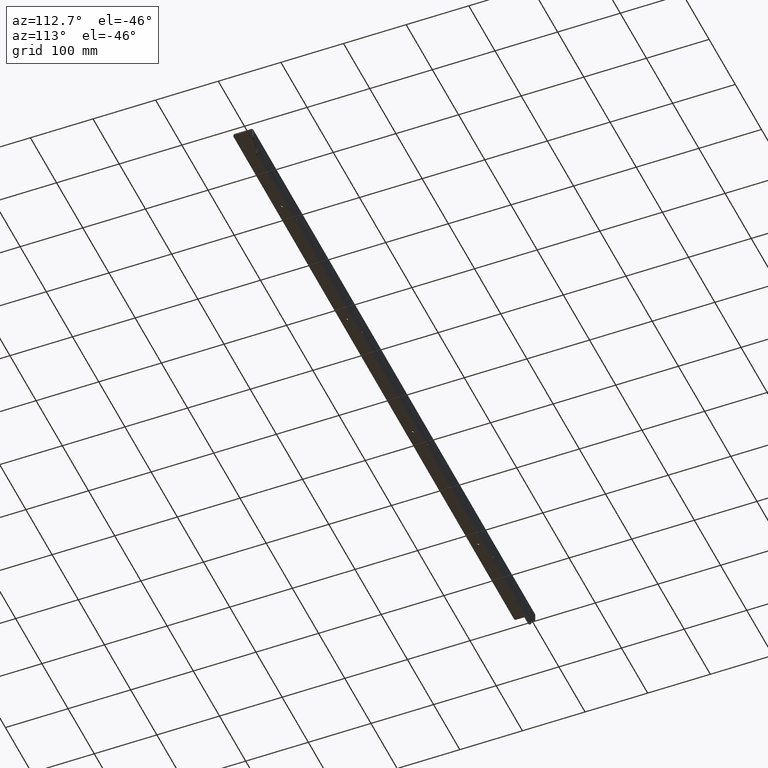
[diagram: clean part render]
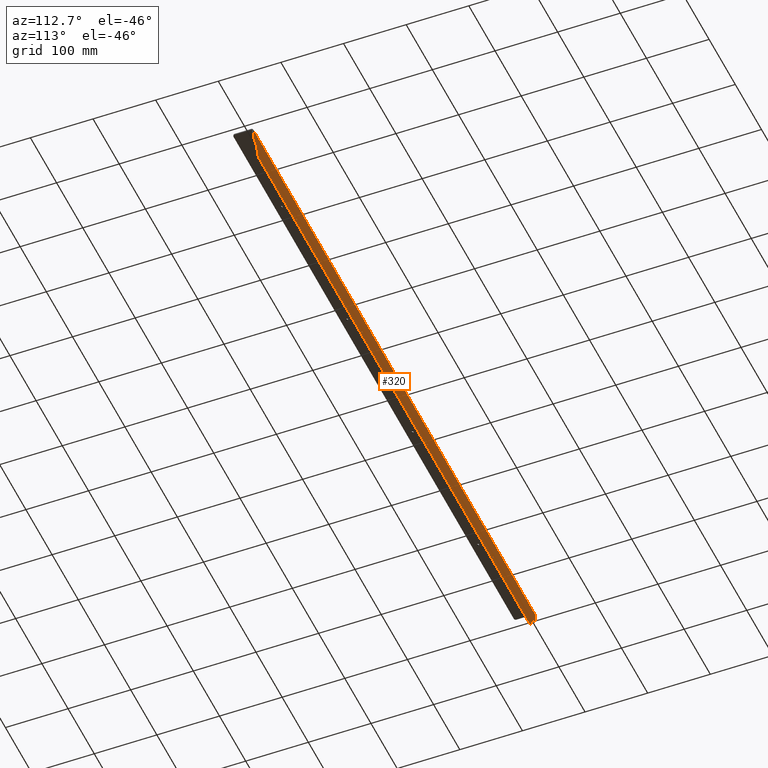
[diagram: same view with one face highlighted and labeled with its STEP entity id]
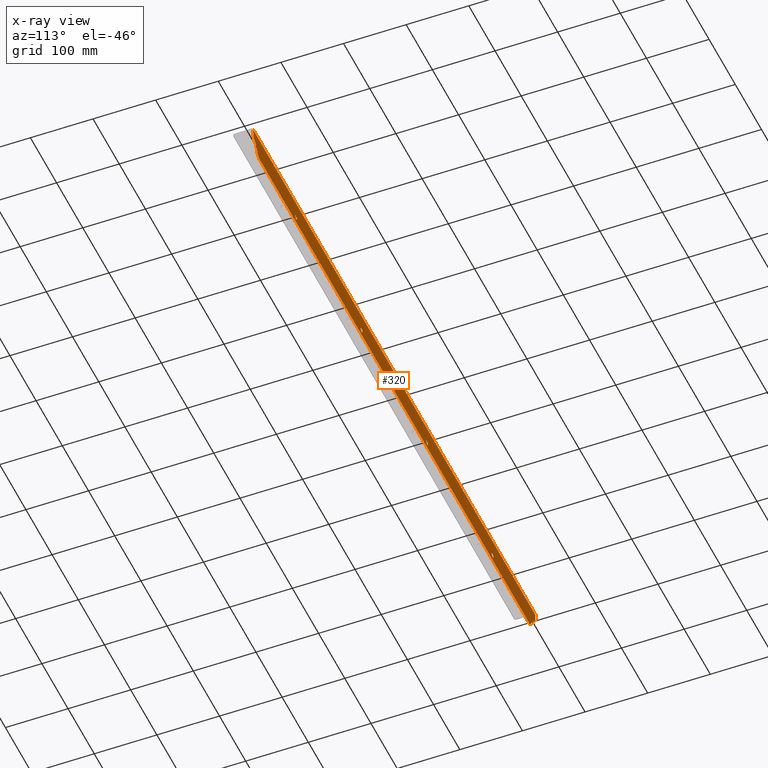
[diagram: x-ray of the same camera — body ghosted, the highlighted face saturated]
A machine part, auxiliary view. The second image highlights one B-rep face of the part: STEP entity #320.
The next image is the same camera in x-ray: the body ghosted, the highlighted face saturated — about 0% of this face is hidden behind the body in this view.
In plain terms, the highlighted planar face has unit normal (-0, 1, 0).
Its self-contained STEP definition (entity closure, byte-faithful):
#3 = DIRECTION ( 'NONE',  ( 0.000000000000000000, 0.000000000000000000, 1.000000000000000000 ) ) ;
#11 = DIRECTION ( 'NONE',  ( 0.000000000000000000, 0.000000000000000000, 1.000000000000000000 ) ) ;
#30 = DIRECTION ( 'NONE',  ( 0.000000000000000000, 0.000000000000000000, 1.000000000000000000 ) ) ;
#45 = VECTOR ( 'NONE', #541, 1000.000000000000000 ) ;
#50 = CARTESIAN_POINT ( 'NONE',  ( 375.0000000000000000, 1088.305264068990027, 1220.500000000009550 ) ) ;
#58 = EDGE_CURVE ( 'NONE', #1270, #761, #1031, .T. ) ;
#60 = FACE_OUTER_BOUND ( 'NONE', #754, .T. ) ;
#61 = ORIENTED_EDGE ( 'NONE', *, *, #204, .F. ) ;
#67 = VECTOR ( 'NONE', #790, 1000.000000000000000 ) ;
#76 = AXIS2_PLACEMENT_3D ( 'NONE', #453, #1180, #389 ) ;
#79 = DIRECTION ( 'NONE',  ( 0.000000000000000000, 1.000000000000000000, -3.172065784643252111E-14 ) ) ;
#85 = DIRECTION ( 'NONE',  ( -0.000000000000000000, 1.000000000000000000, 0.000000000000000000 ) ) ;
#87 = CARTESIAN_POINT ( 'NONE',  ( -532.4444444444444571, 1088.305264068951146, 1235.228709080119643 ) ) ;
#90 = VERTEX_POINT ( 'NONE', #87 ) ;
#109 = CARTESIAN_POINT ( 'NONE',  ( -538.0000000000001137, 1088.305264068951146, 1257.499999999999545 ) ) ;
#114 = VERTEX_POINT ( 'NONE', #827 ) ;
#116 = AXIS2_PLACEMENT_3D ( 'NONE', #510, #308, #689 ) ;
#117 = DIRECTION ( 'NONE',  ( 0.000000000000000000, 1.000000000000000000, -3.172065784643252111E-14 ) ) ;
#120 = LINE ( 'NONE', #600, #194 ) ;
#132 = EDGE_CURVE ( 'NONE', #234, #1087, #630, .T. ) ;
#144 = CIRCLE ( 'NONE', #655, 3.499999999989844568 ) ;
#156 = ORIENTED_EDGE ( 'NONE', *, *, #1073, .F. ) ;
#170 = AXIS2_PLACEMENT_3D ( 'NONE', #299, #773, #348 ) ;
#171 = CARTESIAN_POINT ( 'NONE',  ( 375.0000000000000000, 1088.305264068990027, 1227.499999999989086 ) ) ;
#173 = ORIENTED_EDGE ( 'NONE', *, *, #132, .T. ) ;
#176 = ORIENTED_EDGE ( 'NONE', *, *, #1152, .T. ) ;
#180 = CARTESIAN_POINT ( 'NONE',  ( 538.0000000000000000, 1088.305264068951146, 1244.186773244895676 ) ) ;
#186 = DIRECTION ( 'NONE',  ( -0.000000000000000000, 1.000000000000000000, 0.000000000000000000 ) ) ;
#194 = VECTOR ( 'NONE', #519, 1000.000000000000000 ) ;
#195 = CARTESIAN_POINT ( 'NONE',  ( -375.0000000000000000, 1088.305264068990027, 1223.999999999999318 ) ) ;
#200 = EDGE_CURVE ( 'NONE', #234, #1235, #535, .T. ) ;
#203 = CARTESIAN_POINT ( 'NONE',  ( -538.0000000000001137, 1088.305264068951146, 1244.186773244895903 ) ) ;
#204 = EDGE_CURVE ( 'NONE', #1235, #722, #443, .T. ) ;
#208 = AXIS2_PLACEMENT_3D ( 'NONE', #1302, #805, #1207 ) ;
#233 = CIRCLE ( 'NONE', #395, 10.00000000000000888 ) ;
#234 = VERTEX_POINT ( 'NONE', #180 ) ;
#242 = VERTEX_POINT ( 'NONE', #171 ) ;
#272 = FACE_BOUND ( 'NONE', #1000, .T. ) ;
#278 = CARTESIAN_POINT ( 'NONE',  ( -375.0000000000000000, 1088.305264068990027, 1227.499999999989086 ) ) ;
#280 = DIRECTION ( 'NONE',  ( -0.000000000000000000, 1.000000000000000000, 0.000000000000000000 ) ) ;
#299 = CARTESIAN_POINT ( 'NONE',  ( -513.2979401543624363, 1088.305264068951146, 1223.999999999999318 ) ) ;
#308 = DIRECTION ( 'NONE',  ( 0.000000000000000000, 1.000000000000000000, -3.172065784643252111E-14 ) ) ;
#311 = VERTEX_POINT ( 'NONE', #1154 ) ;
#313 = AXIS2_PLACEMENT_3D ( 'NONE', #608, #117, #323 ) ;
#315 = CIRCLE ( 'NONE', #1200, 10.00000000000000888 ) ;
#320 = ADVANCED_FACE ( 'NONE', ( #272, #1058, #961, #858, #60 ), #1258, .T. ) ;
#323 = DIRECTION ( 'NONE',  ( 0.000000000000000000, 0.000000000000000000, 1.000000000000000000 ) ) ;
#340 = CARTESIAN_POINT ( 'NONE',  ( 528.0000000000000000, 1088.305264068951146, 1244.186773244895676 ) ) ;
#346 = ORIENTED_EDGE ( 'NONE', *, *, #464, .F. ) ;
#348 = DIRECTION ( 'NONE',  ( 0.000000000000000000, 0.000000000000000000, 1.000000000000000000 ) ) ;
#357 = DIRECTION ( 'NONE',  ( 0.000000000000000000, 0.000000000000000000, 1.000000000000000000 ) ) ;
#371 = CARTESIAN_POINT ( 'NONE',  ( 605.0096185640381918, 1088.305264068951146, 1257.499999999999545 ) ) ;
#389 = DIRECTION ( 'NONE',  ( 0.000000000000000000, 0.000000000000000000, 1.000000000000000000 ) ) ;
#392 = DIRECTION ( 'NONE',  ( 0.000000000000000000, 0.000000000000000000, 1.000000000000000000 ) ) ;
#395 = AXIS2_PLACEMENT_3D ( 'NONE', #705, #431, #11 ) ;
#400 = ORIENTED_EDGE ( 'NONE', *, *, #1043, .T. ) ;
#402 = LINE ( 'NONE', #109, #67 ) ;
#407 = CARTESIAN_POINT ( 'NONE',  ( -375.0000000000000000, 1088.305264068990027, 1220.500000000009550 ) ) ;
#408 = VECTOR ( 'NONE', #30, 1000.000000000000000 ) ;
#429 = ORIENTED_EDGE ( 'NONE', *, *, #1220, .T. ) ;
#431 = DIRECTION ( 'NONE',  ( -0.000000000000000000, 1.000000000000000000, 0.000000000000000000 ) ) ;
#439 = EDGE_LOOP ( 'NONE', ( #1212, #735 ) ) ;
#443 = LINE ( 'NONE', #1134, #45 ) ;
#452 = EDGE_CURVE ( 'NONE', #722, #1238, #402, .T. ) ;
#453 = CARTESIAN_POINT ( 'NONE',  ( 125.0000000000000000, 1088.305264068990027, 1223.999999999999318 ) ) ;
#461 = CARTESIAN_POINT ( 'NONE',  ( -125.0000000000000000, 1088.305264068990027, 1227.499999999989086 ) ) ;
#464 = EDGE_CURVE ( 'NONE', #1219, #114, #799, .T. ) ;
#468 = EDGE_CURVE ( 'NONE', #1060, #242, #552, .T. ) ;
#470 = ORIENTED_EDGE ( 'NONE', *, *, #452, .F. ) ;
#473 = AXIS2_PLACEMENT_3D ( 'NONE', #882, #605, #392 ) ;
#479 = AXIS2_PLACEMENT_3D ( 'NONE', #774, #79, #880 ) ;
#486 = EDGE_CURVE ( 'NONE', #90, #1125, #1198, .T. ) ;
#499 = CARTESIAN_POINT ( 'NONE',  ( -513.2979401543623226, 1088.305264068951146, 1213.999999999999318 ) ) ;
#502 = CARTESIAN_POINT ( 'NONE',  ( 538.0000000000000000, 1088.305264068951146, 1253.499999999999545 ) ) ;
#505 = DIRECTION ( 'NONE',  ( 0.000000000000000000, 1.000000000000000000, -3.172065784643252111E-14 ) ) ;
#510 = CARTESIAN_POINT ( 'NONE',  ( 125.0000000000000000, 1088.305264068990027, 1223.999999999999318 ) ) ;
#519 = DIRECTION ( 'NONE',  ( -1.000000000000000000, -0.000000000000000000, -0.000000000000000000 ) ) ;
#521 = CIRCLE ( 'NONE', #1272, 3.499999999989844568 ) ;
#535 = LINE ( 'NONE', #739, #408 ) ;
#541 = DIRECTION ( 'NONE',  ( -1.000000000000000000, -0.000000000000000000, -0.000000000000000000 ) ) ;
#552 = CIRCLE ( 'NONE', #758, 3.499999999989844568 ) ;
#567 = VERTEX_POINT ( 'NONE', #708 ) ;
#569 = AXIS2_PLACEMENT_3D ( 'NONE', #340, #1037, #714 ) ;
#583 = DIRECTION ( 'NONE',  ( 0.000000000000000000, 1.000000000000000000, -3.172065784643252111E-14 ) ) ;
#593 = EDGE_LOOP ( 'NONE', ( #1290, #808 ) ) ;
#594 = EDGE_CURVE ( 'NONE', #242, #1060, #863, .T. ) ;
#600 = CARTESIAN_POINT ( 'NONE',  ( 605.0096185640381918, 1088.305264068951146, 1213.999999999999318 ) ) ;
#605 = DIRECTION ( 'NONE',  ( 0.000000000000000000, 1.000000000000000000, -3.172065784643252111E-14 ) ) ;
#606 = CARTESIAN_POINT ( 'NONE',  ( 125.0000000000000000, 1088.305264068990027, 1220.500000000009550 ) ) ;
#608 = CARTESIAN_POINT ( 'NONE',  ( 375.0000000000000000, 1088.305264068990027, 1223.999999999999318 ) ) ;
#613 = ORIENTED_EDGE ( 'NONE', *, *, #856, .F. ) ;
#630 = CIRCLE ( 'NONE', #569, 10.00000000000000888 ) ;
#645 = ORIENTED_EDGE ( 'NONE', *, *, #1079, .T. ) ;
#655 = AXIS2_PLACEMENT_3D ( 'NONE', #195, #583, #780 ) ;
#689 = DIRECTION ( 'NONE',  ( 0.000000000000000000, 0.000000000000000000, 1.000000000000000000 ) ) ;
#705 = CARTESIAN_POINT ( 'NONE',  ( -528.0000000000001137, 1088.305264068951146, 1244.186773244895903 ) ) ;
#708 = CARTESIAN_POINT ( 'NONE',  ( -125.0000000000000000, 1088.305264068990027, 1220.500000000009550 ) ) ;
#714 = DIRECTION ( 'NONE',  ( 0.000000000000000000, 0.000000000000000000, 1.000000000000000000 ) ) ;
#722 = VERTEX_POINT ( 'NONE', #853 ) ;
#728 = ORIENTED_EDGE ( 'NONE', *, *, #58, .F. ) ;
#735 = ORIENTED_EDGE ( 'NONE', *, *, #468, .F. ) ;
#739 = CARTESIAN_POINT ( 'NONE',  ( 538.0000000000000000, 1088.305264068951146, 1257.499999999999545 ) ) ;
#754 = EDGE_LOOP ( 'NONE', ( #156, #645, #429, #176, #1204, #400, #470, #61, #1162, #173 ) ) ;
#758 = AXIS2_PLACEMENT_3D ( 'NONE', #1095, #505, #3 ) ;
#761 = VERTEX_POINT ( 'NONE', #278 ) ;
#763 = CIRCLE ( 'NONE', #170, 10.00000000000000888 ) ;
#773 = DIRECTION ( 'NONE',  ( -0.000000000000000000, 1.000000000000000000, 0.000000000000000000 ) ) ;
#774 = CARTESIAN_POINT ( 'NONE',  ( -125.0000000000000000, 1088.305264068990027, 1223.999999999999318 ) ) ;
#780 = DIRECTION ( 'NONE',  ( 0.000000000000000000, 0.000000000000000000, 1.000000000000000000 ) ) ;
#790 = DIRECTION ( 'NONE',  ( -0.000000000000000000, 0.000000000000000000, -1.000000000000000000 ) ) ;
#799 = CIRCLE ( 'NONE', #116, 3.499999999989844568 ) ;
#805 = DIRECTION ( 'NONE',  ( -0.000000000000000000, 1.000000000000000000, 0.000000000000000000 ) ) ;
#808 = ORIENTED_EDGE ( 'NONE', *, *, #913, .F. ) ;
#825 = CIRCLE ( 'NONE', #1267, 16.99999999999990408 ) ;
#827 = CARTESIAN_POINT ( 'NONE',  ( 125.0000000000000000, 1088.305264068990027, 1227.499999999989086 ) ) ;
#837 = CARTESIAN_POINT ( 'NONE',  ( 523.1875919490430533, 1088.305264068951146, 1222.518518518518022 ) ) ;
#848 = EDGE_LOOP ( 'NONE', ( #613, #728 ) ) ;
#849 = VERTEX_POINT ( 'NONE', #499 ) ;
#853 = CARTESIAN_POINT ( 'NONE',  ( -538.0000000000001137, 1088.305264068951146, 1253.499999999999545 ) ) ;
#856 = EDGE_CURVE ( 'NONE', #761, #1270, #144, .T. ) ;
#858 = FACE_BOUND ( 'NONE', #439, .T. ) ;
#863 = CIRCLE ( 'NONE', #313, 3.499999999989844568 ) ;
#880 = DIRECTION ( 'NONE',  ( 0.000000000000000000, 0.000000000000000000, 1.000000000000000000 ) ) ;
#882 = CARTESIAN_POINT ( 'NONE',  ( -375.0000000000000000, 1088.305264068990027, 1223.999999999999318 ) ) ;
#913 = EDGE_CURVE ( 'NONE', #567, #1071, #1287, .T. ) ;
#944 = DIRECTION ( 'NONE',  ( 0.000000000000000000, 0.000000000000000000, 1.000000000000000000 ) ) ;
#952 = AXIS2_PLACEMENT_3D ( 'NONE', #371, #280, #1063 ) ;
#961 = FACE_BOUND ( 'NONE', #848, .T. ) ;
#991 = DIRECTION ( 'NONE',  ( 0.000000000000000000, 1.000000000000000000, -3.172065784643252111E-14 ) ) ;
#1000 = EDGE_LOOP ( 'NONE', ( #1117, #346 ) ) ;
#1013 = DIRECTION ( 'NONE',  ( 0.000000000000000000, 0.000000000000000000, 1.000000000000000000 ) ) ;
#1031 = CIRCLE ( 'NONE', #473, 3.499999999989844568 ) ;
#1037 = DIRECTION ( 'NONE',  ( -0.000000000000000000, 1.000000000000000000, 0.000000000000000000 ) ) ;
#1043 = EDGE_CURVE ( 'NONE', #90, #1238, #233, .T. ) ;
#1058 = FACE_BOUND ( 'NONE', #593, .T. ) ;
#1060 = VERTEX_POINT ( 'NONE', #50 ) ;
#1063 = DIRECTION ( 'NONE',  ( 0.000000000000000000, -0.000000000000000000, 1.000000000000000000 ) ) ;
#1071 = VERTEX_POINT ( 'NONE', #461 ) ;
#1073 = EDGE_CURVE ( 'NONE', #1081, #1087, #825, .T. ) ;
#1079 = EDGE_CURVE ( 'NONE', #1081, #311, #315, .T. ) ;
#1081 = VERTEX_POINT ( 'NONE', #837 ) ;
#1082 = CARTESIAN_POINT ( 'NONE',  ( 513.2979401543625499, 1088.305264068951146, 1223.999999999999318 ) ) ;
#1087 = VERTEX_POINT ( 'NONE', #1146 ) ;
#1095 = CARTESIAN_POINT ( 'NONE',  ( 375.0000000000000000, 1088.305264068990027, 1223.999999999999318 ) ) ;
#1117 = ORIENTED_EDGE ( 'NONE', *, *, #1142, .F. ) ;
#1125 = VERTEX_POINT ( 'NONE', #1167 ) ;
#1134 = CARTESIAN_POINT ( 'NONE',  ( 605.0096185640381918, 1088.305264068951146, 1253.499999999999545 ) ) ;
#1142 = EDGE_CURVE ( 'NONE', #114, #1219, #1182, .T. ) ;
#1146 = CARTESIAN_POINT ( 'NONE',  ( 532.4444444444444571, 1088.305264068951146, 1235.228709080119415 ) ) ;
#1152 = EDGE_CURVE ( 'NONE', #849, #1125, #763, .T. ) ;
#1154 = CARTESIAN_POINT ( 'NONE',  ( 513.2979401543625499, 1088.305264068951146, 1213.999999999999318 ) ) ;
#1162 = ORIENTED_EDGE ( 'NONE', *, *, #200, .F. ) ;
#1167 = CARTESIAN_POINT ( 'NONE',  ( -523.1875919490430533, 1088.305264068951146, 1222.518518518518022 ) ) ;
#1180 = DIRECTION ( 'NONE',  ( 0.000000000000000000, 1.000000000000000000, -3.172065784643252111E-14 ) ) ;
#1181 = EDGE_CURVE ( 'NONE', #1071, #567, #521, .T. ) ;
#1182 = CIRCLE ( 'NONE', #76, 3.499999999989844568 ) ;
#1198 = CIRCLE ( 'NONE', #208, 16.99999999999990408 ) ;
#1200 = AXIS2_PLACEMENT_3D ( 'NONE', #1082, #186, #357 ) ;
#1202 = CARTESIAN_POINT ( 'NONE',  ( -125.0000000000000000, 1088.305264068990027, 1223.999999999999318 ) ) ;
#1204 = ORIENTED_EDGE ( 'NONE', *, *, #486, .F. ) ;
#1207 = DIRECTION ( 'NONE',  ( 0.000000000000000000, 0.000000000000000000, 1.000000000000000000 ) ) ;
#1212 = ORIENTED_EDGE ( 'NONE', *, *, #594, .F. ) ;
#1219 = VERTEX_POINT ( 'NONE', #606 ) ;
#1220 = EDGE_CURVE ( 'NONE', #311, #849, #120, .T. ) ;
#1235 = VERTEX_POINT ( 'NONE', #502 ) ;
#1238 = VERTEX_POINT ( 'NONE', #203 ) ;
#1250 = CARTESIAN_POINT ( 'NONE',  ( 540.0000000000000000, 1088.305264068951146, 1220.000000000000000 ) ) ;
#1258 = PLANE ( 'NONE',  #952 ) ;
#1267 = AXIS2_PLACEMENT_3D ( 'NONE', #1250, #85, #944 ) ;
#1270 = VERTEX_POINT ( 'NONE', #407 ) ;
#1272 = AXIS2_PLACEMENT_3D ( 'NONE', #1202, #991, #1013 ) ;
#1287 = CIRCLE ( 'NONE', #479, 3.499999999989844568 ) ;
#1290 = ORIENTED_EDGE ( 'NONE', *, *, #1181, .F. ) ;
#1302 = CARTESIAN_POINT ( 'NONE',  ( -540.0000000000000000, 1088.305264068951146, 1220.000000000000227 ) ) ;